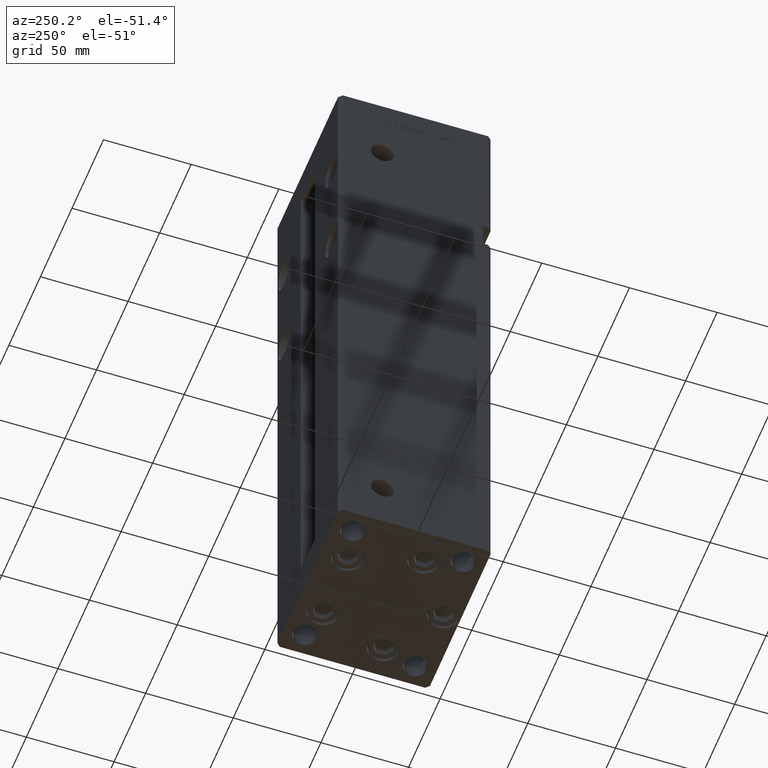
[diagram: clean part render]
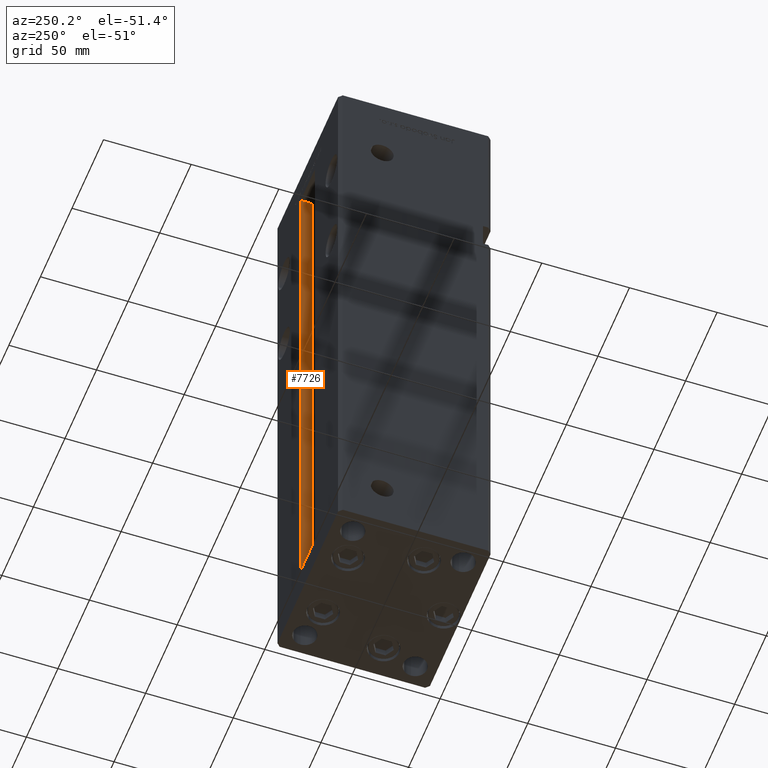
[diagram: same view with one face highlighted and labeled with its STEP entity id]
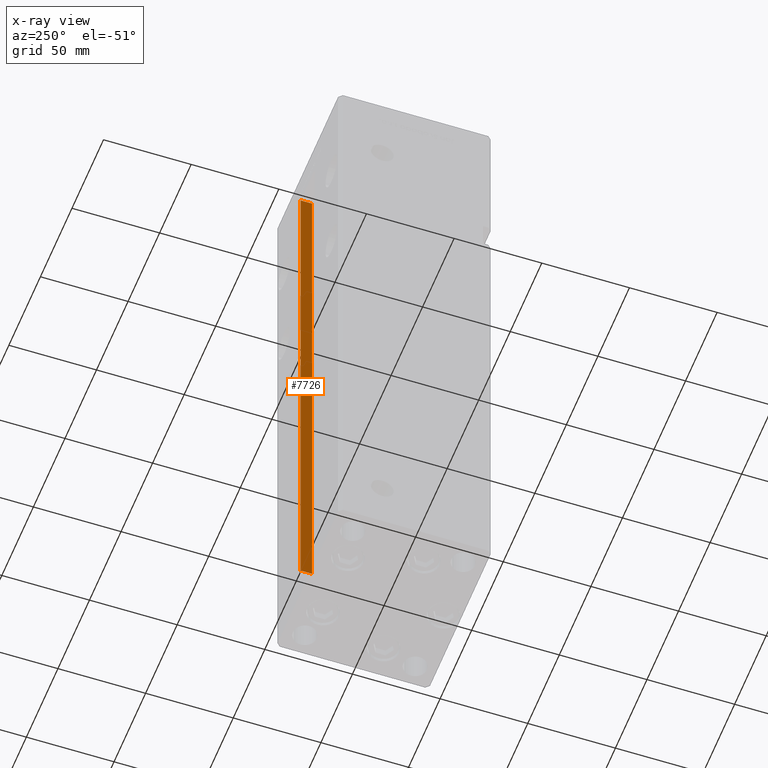
[diagram: x-ray of the same camera — body ghosted, the highlighted face saturated]
A machine part, auxiliary view. The second image highlights one B-rep face of the part: STEP entity #7726.
The next image is the same camera in x-ray: the body ghosted, the highlighted face saturated — about 0% of this face is hidden behind the body in this view.
In plain terms, the highlighted planar face has unit normal (1, 0, 0).
Its self-contained STEP definition (entity closure, byte-faithful):
#89 = DIRECTION ( 'NONE',  ( 0.000000000000000000, 0.000000000000000000, -1.000000000000000000 ) ) ;
#2496 = VECTOR ( 'NONE', #14121, 1000.000000000000000 ) ;
#3532 = CARTESIAN_POINT ( 'NONE',  ( 11.24999999999999645, 43.50000000000000000, 0.000000000000000000 ) ) ;
#4413 = VERTEX_POINT ( 'NONE', #12715 ) ;
#5704 = VECTOR ( 'NONE', #48850, 1000.000000000000000 ) ;
#5819 = DIRECTION ( 'NONE',  ( -0.000000000000000000, -0.000000000000000000, 1.000000000000000000 ) ) ;
#7726 = ADVANCED_FACE ( 'NONE', ( #20532 ), #33704, .F. ) ;
#8506 = CARTESIAN_POINT ( 'NONE',  ( 11.24999999999999645, 37.00000000000000000, 0.000000000000000000 ) ) ;
#10883 = VERTEX_POINT ( 'NONE', #30240 ) ;
#11068 = LINE ( 'NONE', #3532, #2496 ) ;
#12715 = CARTESIAN_POINT ( 'NONE',  ( 11.24999999999998934, 43.50000000000000000, 318.5000000000000000 ) ) ;
#13447 = VERTEX_POINT ( 'NONE', #28679 ) ;
#14121 = DIRECTION ( 'NONE',  ( -0.000000000000000000, -0.000000000000000000, 1.000000000000000000 ) ) ;
#14653 = LINE ( 'NONE', #27566, #5704 ) ;
#15449 = EDGE_CURVE ( 'NONE', #4413, #32903, #14653, .T. ) ;
#16168 = EDGE_CURVE ( 'NONE', #13447, #32903, #42954, .T. ) ;
#17018 = CARTESIAN_POINT ( 'NONE',  ( 11.24999999999999645, 37.00000000000000000, 0.000000000000000000 ) ) ;
#20532 = FACE_OUTER_BOUND ( 'NONE', #49112, .T. ) ;
#24400 = EDGE_CURVE ( 'NONE', #10883, #4413, #11068, .T. ) ;
#24733 = ORIENTED_EDGE ( 'NONE', *, *, #16168, .T. ) ;
#25127 = EDGE_CURVE ( 'NONE', #13447, #10883, #52669, .T. ) ;
#27566 = CARTESIAN_POINT ( 'NONE',  ( 11.24999999999999645, 0.000000000000000000, 318.5000000000000000 ) ) ;
#28679 = CARTESIAN_POINT ( 'NONE',  ( 11.24999999999999645, 37.00000000000000000, 0.000000000000000000 ) ) ;
#30240 = CARTESIAN_POINT ( 'NONE',  ( 11.24999999999999645, 43.50000000000000000, 0.000000000000000000 ) ) ;
#30561 = CARTESIAN_POINT ( 'NONE',  ( 11.24999999999999645, 37.00000000000000000, 0.000000000000000000 ) ) ;
#32903 = VERTEX_POINT ( 'NONE', #37013 ) ;
#33704 = PLANE ( 'NONE',  #37409 ) ;
#36677 = VECTOR ( 'NONE', #5819, 1000.000000000000000 ) ;
#37013 = CARTESIAN_POINT ( 'NONE',  ( 11.24999999999999645, 37.00000000000000000, 318.5000000000000000 ) ) ;
#37034 = ORIENTED_EDGE ( 'NONE', *, *, #25127, .F. ) ;
#37409 = AXIS2_PLACEMENT_3D ( 'NONE', #17018, #45568, #89 ) ;
#41606 = DIRECTION ( 'NONE',  ( 0.000000000000000000, 1.000000000000000000, 0.000000000000000000 ) ) ;
#42954 = LINE ( 'NONE', #30561, #36677 ) ;
#45568 = DIRECTION ( 'NONE',  ( 1.000000000000000000, -0.000000000000000000, 0.000000000000000000 ) ) ;
#48089 = ORIENTED_EDGE ( 'NONE', *, *, #15449, .F. ) ;
#48850 = DIRECTION ( 'NONE',  ( -0.000000000000000000, -1.000000000000000000, 0.000000000000000000 ) ) ;
#49112 = EDGE_LOOP ( 'NONE', ( #49358, #37034, #24733, #48089 ) ) ;
#49358 = ORIENTED_EDGE ( 'NONE', *, *, #24400, .F. ) ;
#49818 = VECTOR ( 'NONE', #41606, 1000.000000000000000 ) ;
#52669 = LINE ( 'NONE', #8506, #49818 ) ;